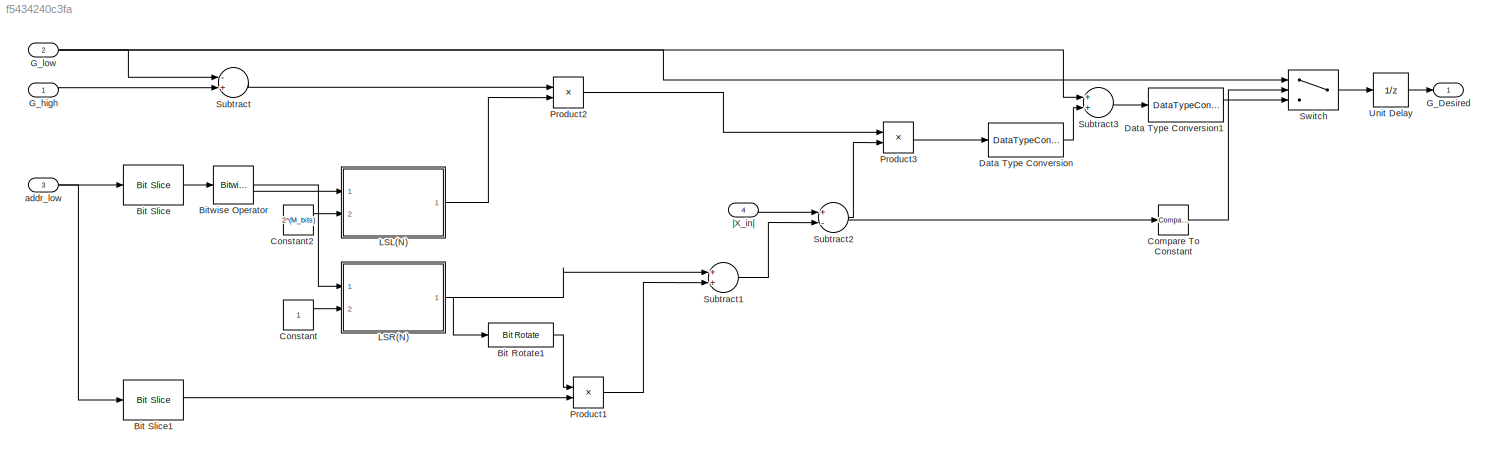
MODEL slx_f5434240c3fa
KIND model
CONFIG AbsTol = auto
CONFIG EnableMultiTasking = off
CONFIG FixedStep = auto
CONFIG InitFcn = clear;\nDIAGNOSTIC = 0;  %% flag to give more information as simulation proceeds such as comments & plots\nCALIB_DIAGNOSTIC =  0; %% flag to give more information about calibration of filterbank due to overlap between filters: Mar 2016\nPRESCRIPT = 1;  %% flag to plot requested versus achieved insertion gains (esp for 125-250 Hz region).\nipfiledigrms = -36; %% input file RMS in dB for 65 dB SPL equiv...<+3607ch>
CONFIG MaxStep = auto
CONFIG MinStep = auto
CONFIG RelTol = 1e-3
CONFIG SampleTimeConstraint = Unconstrained
CONFIG Solver = VariableStepAuto
CONFIG SolverName = VariableStepAuto
CONFIG StartTime = 0.0
CONFIG StopFcn = proc_sig = double(out.proc_sig.data(:));\n%alignedSigs = double(out.alignedSigs.data(:));\n[opwav, stop_ok] = savewavfile(opfiledigrms, ipfiledigrms, proc_sig, Fs, nbits, NStreams);\n\nload('SweepSimOutput.mat')\nX_out_Sweep_Sim(Volume,:) = proc_sig;\nsave('SweepSimOutput.mat', 'X_out_Sweep_Sim');
CONFIG StopTime = 10.0
BLOCK [Reference] Bit Rotate1  REF=hdlsllib/Logic and Bit
Operations/Bit Rotate
  Ports = [1, 1]
  SourceBlock = hdlsllib/Logic and Bit\nOperations/Bit Rotate
  SourceProductBaseCode = SL
  SourceProductName = Simulink
  SourceType = Bit Rotate
BLOCK [Reference] Bit Slice  REF=hdlsllib/Logic and Bit
Operations/Bit Slice
  Ports = [1, 1]
  SourceBlock = hdlsllib/Logic and Bit\nOperations/Bit Slice
  SourceProductBaseCode = SL
  SourceProductName = Simulink
  SourceType = Bit Slice
BLOCK [Reference] Bit Slice1  REF=hdlsllib/Logic and Bit
Operations/Bit Slice
  Ports = [1, 1]
  SourceBlock = hdlsllib/Logic and Bit\nOperations/Bit Slice
  SourceProductBaseCode = SL
  SourceProductName = Simulink
  SourceType = Bit Slice
BLOCK [Reference] Bitwise Operator  REF=simulink/Logic and Bit
Operations/Bitwise
Operator
  Ports = [1, 1]
  SourceBlock = simulink/Logic and Bit\nOperations/Bitwise\nOperator
  SourceProductBaseCode = SL
  SourceProductName = Simulink
  SourceType = Bitwise Operator
BLOCK [Reference] Compare To Constant  REF=simulink/Logic and Bit
Operations/Compare
To Constant
  Ports = [1, 1]
  SourceBlock = simulink/Logic and Bit\nOperations/Compare\nTo Constant
  SourceProductBaseCode = SL
  SourceProductName = Simulink
  SourceType = Compare To Constant
BLOCK [Constant] Constant
  OutDataTypeStr = fixdt(0,W_bits,W_bits-2)
  SampleTime = -1
BLOCK [Constant] Constant2
  OutDataTypeStr = fixdt(0,W_bits,0)
  SampleTime = -1
  Value = 2^(M_bits)
BLOCK [DataTypeConversion] Data Type Conversion
  OutDataTypeStr = fixdt(1,W_bits,F_bits)
  RndMeth = Floor
  SaturateOnIntegerOverflow = off
BLOCK [DataTypeConversion] Data Type Conversion1
  OutDataTypeStr = fixdt(1,W_bits, F_bits)
  RndMeth = Floor
  SaturateOnIntegerOverflow = off
BLOCK [Outport] G_Desired
  IconDisplay = Port number
  OutDataTypeStr = fixdt(1,32,28)
  PortDimensions = 1
  SampleTime = [2.0833333333333333e-05,0]
  SignalType = real
BLOCK [Inport] G_high
  IconDisplay = Port number
  OutDataTypeStr = fixdt(1, 32, 28)
  PortDimensions = 1
  SampleTime = 2.08333333333333e-05
  SignalType = real
BLOCK [Inport] G_low
  IconDisplay = Port number
  OutDataTypeStr = fixdt(1, 32, 28)
  Port = 2
  PortDimensions = 1
  SampleTime = 2.08333333333333e-05
  SignalType = real
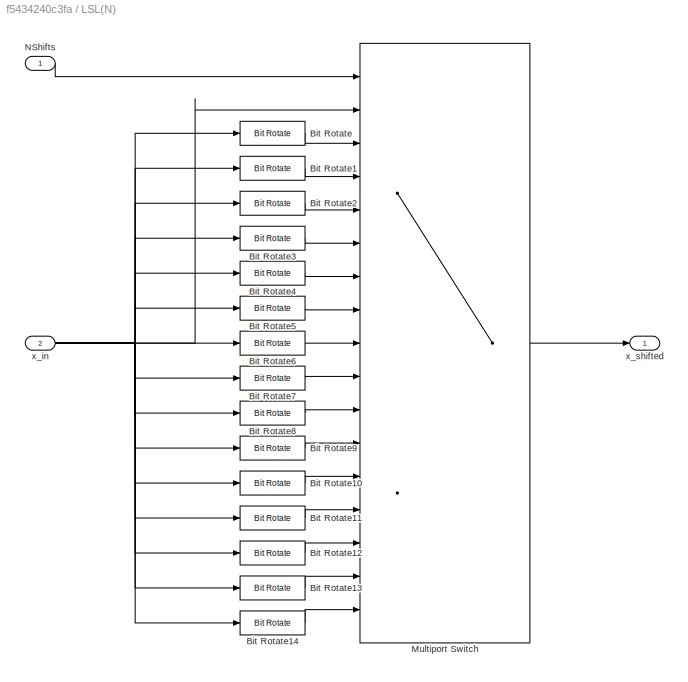
BLOCK [SubSystem] LSL(N)
  Ports = [2, 1]
  RequestExecContextInheritance = off
BLOCK [Reference] LSL(N)/Bit Rotate  REF=hdlsllib/Logic and Bit
Operations/Bit Rotate
  Ports = [1, 1]
  SourceBlock = hdlsllib/Logic and Bit\nOperations/Bit Rotate
  SourceProductBaseCode = SL
  SourceProductName = Simulink
  SourceType = Bit Rotate
BLOCK [Reference] LSL(N)/Bit Rotate1  REF=hdlsllib/Logic and Bit
Operations/Bit Rotate
  Ports = [1, 1]
  SourceBlock = hdlsllib/Logic and Bit\nOperations/Bit Rotate
  SourceProductBaseCode = SL
  SourceProductName = Simulink
  SourceType = Bit Rotate
BLOCK [Reference] LSL(N)/Bit Rotate10  REF=hdlsllib/Logic and Bit
Operations/Bit Rotate
  Ports = [1, 1]
  SourceBlock = hdlsllib/Logic and Bit\nOperations/Bit Rotate
  SourceProductBaseCode = SL
  SourceProductName = Simulink
  SourceType = Bit Rotate
BLOCK [Reference] LSL(N)/Bit Rotate11  REF=hdlsllib/Logic and Bit
Operations/Bit Rotate
  Ports = [1, 1]
  SourceBlock = hdlsllib/Logic and Bit\nOperations/Bit Rotate
  SourceProductBaseCode = SL
  SourceProductName = Simulink
  SourceType = Bit Rotate
BLOCK [Reference] LSL(N)/Bit Rotate12  REF=hdlsllib/Logic and Bit
Operations/Bit Rotate
  Ports = [1, 1]
  SourceBlock = hdlsllib/Logic and Bit\nOperations/Bit Rotate
  SourceProductBaseCode = SL
  SourceProductName = Simulink
  SourceType = Bit Rotate
BLOCK [Reference] LSL(N)/Bit Rotate13  REF=hdlsllib/Logic and Bit
Operations/Bit Rotate
  Ports = [1, 1]
  SourceBlock = hdlsllib/Logic and Bit\nOperations/Bit Rotate
  SourceProductBaseCode = SL
  SourceProductName = Simulink
  SourceType = Bit Rotate
BLOCK [Reference] LSL(N)/Bit Rotate14  REF=hdlsllib/Logic and Bit
Operations/Bit Rotate
  Ports = [1, 1]
  SourceBlock = hdlsllib/Logic and Bit\nOperations/Bit Rotate
  SourceProductBaseCode = SL
  SourceProductName = Simulink
  SourceType = Bit Rotate
BLOCK [Reference] LSL(N)/Bit Rotate2  REF=hdlsllib/Logic and Bit
Operations/Bit Rotate
  Ports = [1, 1]
  SourceBlock = hdlsllib/Logic and Bit\nOperations/Bit Rotate
  SourceProductBaseCode = SL
  SourceProductName = Simulink
  SourceType = Bit Rotate
BLOCK [Reference] LSL(N)/Bit Rotate3  REF=hdlsllib/Logic and Bit
Operations/Bit Rotate
  Ports = [1, 1]
  SourceBlock = hdlsllib/Logic and Bit\nOperations/Bit Rotate
  SourceProductBaseCode = SL
  SourceProductName = Simulink
  SourceType = Bit Rotate
BLOCK [Reference] LSL(N)/Bit Rotate4  REF=hdlsllib/Logic and Bit
Operations/Bit Rotate
  Ports = [1, 1]
  SourceBlock = hdlsllib/Logic and Bit\nOperations/Bit Rotate
  SourceProductBaseCode = SL
  SourceProductName = Simulink
  SourceType = Bit Rotate
BLOCK [Reference] LSL(N)/Bit Rotate5  REF=hdlsllib/Logic and Bit
Operations/Bit Rotate
  Ports = [1, 1]
  SourceBlock = hdlsllib/Logic and Bit\nOperations/Bit Rotate
  SourceProductBaseCode = SL
  SourceProductName = Simulink
  SourceType = Bit Rotate
BLOCK [Reference] LSL(N)/Bit Rotate6  REF=hdlsllib/Logic and Bit
Operations/Bit Rotate
  Ports = [1, 1]
  SourceBlock = hdlsllib/Logic and Bit\nOperations/Bit Rotate
  SourceProductBaseCode = SL
  SourceProductName = Simulink
  SourceType = Bit Rotate
BLOCK [Reference] LSL(N)/Bit Rotate7  REF=hdlsllib/Logic and Bit
Operations/Bit Rotate
  Ports = [1, 1]
  SourceBlock = hdlsllib/Logic and Bit\nOperations/Bit Rotate
  SourceProductBaseCode = SL
  SourceProductName = Simulink
  SourceType = Bit Rotate
BLOCK [Reference] LSL(N)/Bit Rotate8  REF=hdlsllib/Logic and Bit
Operations/Bit Rotate
  Ports = [1, 1]
  SourceBlock = hdlsllib/Logic and Bit\nOperations/Bit Rotate
  SourceProductBaseCode = SL
  SourceProductName = Simulink
  SourceType = Bit Rotate
BLOCK [Reference] LSL(N)/Bit Rotate9  REF=hdlsllib/Logic and Bit
Operations/Bit Rotate
  Ports = [1, 1]
  SourceBlock = hdlsllib/Logic and Bit\nOperations/Bit Rotate
  SourceProductBaseCode = SL
  SourceProductName = Simulink
  SourceType = Bit Rotate
BLOCK [MultiPortSwitch] LSL(N)/Multiport Switch
  DataPortOrder = Zero-based contiguous
  DiagnosticForDefault = Warning
  InputSameDT = off
  Inputs = 16
  Ports = [17, 1]
  SaturateOnIntegerOverflow = off
  zeroidx = on
BLOCK [Inport] LSL(N)/NShifts
  IconDisplay = Port number
  OutDataTypeStr = fixdt(0, 4, 0)
  PortDimensions = 1
  SampleTime = 2.08333333333333e-05
BLOCK [Inport] LSL(N)/x_in
  IconDisplay = Port number
  OutDataTypeStr = uint32
  Port = 2
  PortDimensions = 1
  SampleTime = 2.08333333333333e-05
BLOCK [Outport] LSL(N)/x_shifted
  IconDisplay = Port number
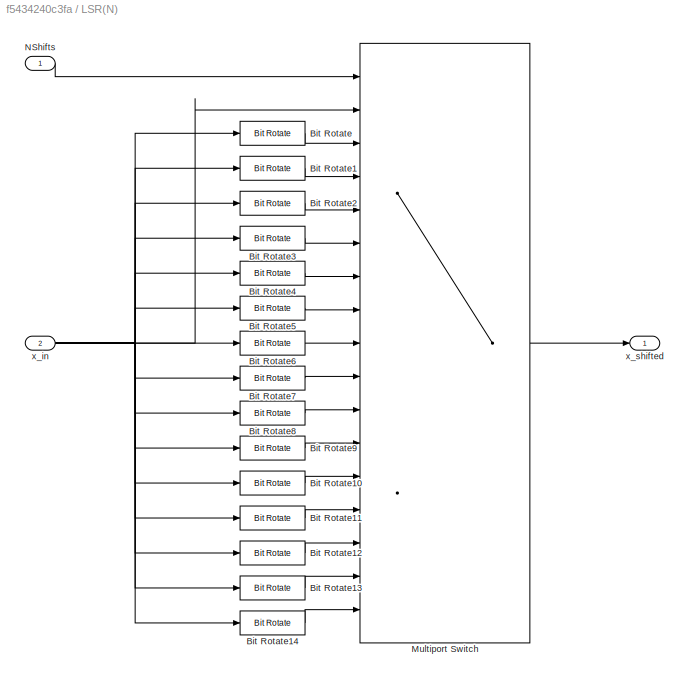
BLOCK [SubSystem] LSR(N)
  Ports = [2, 1]
  RequestExecContextInheritance = off
BLOCK [Reference] LSR(N)/Bit Rotate  REF=hdlsllib/Logic and Bit
Operations/Bit Rotate
  Ports = [1, 1]
  SourceBlock = hdlsllib/Logic and Bit\nOperations/Bit Rotate
  SourceProductBaseCode = SL
  SourceProductName = Simulink
  SourceType = Bit Rotate
BLOCK [Reference] LSR(N)/Bit Rotate1  REF=hdlsllib/Logic and Bit
Operations/Bit Rotate
  Ports = [1, 1]
  SourceBlock = hdlsllib/Logic and Bit\nOperations/Bit Rotate
  SourceProductBaseCode = SL
  SourceProductName = Simulink
  SourceType = Bit Rotate
BLOCK [Reference] LSR(N)/Bit Rotate10  REF=hdlsllib/Logic and Bit
Operations/Bit Rotate
  Ports = [1, 1]
  SourceBlock = hdlsllib/Logic and Bit\nOperations/Bit Rotate
  SourceProductBaseCode = SL
  SourceProductName = Simulink
  SourceType = Bit Rotate
BLOCK [Reference] LSR(N)/Bit Rotate11  REF=hdlsllib/Logic and Bit
Operations/Bit Rotate
  Ports = [1, 1]
  SourceBlock = hdlsllib/Logic and Bit\nOperations/Bit Rotate
  SourceProductBaseCode = SL
  SourceProductName = Simulink
  SourceType = Bit Rotate
BLOCK [Reference] LSR(N)/Bit Rotate12  REF=hdlsllib/Logic and Bit
Operations/Bit Rotate
  Ports = [1, 1]
  SourceBlock = hdlsllib/Logic and Bit\nOperations/Bit Rotate
  SourceProductBaseCode = SL
  SourceProductName = Simulink
  SourceType = Bit Rotate
BLOCK [Reference] LSR(N)/Bit Rotate13  REF=hdlsllib/Logic and Bit
Operations/Bit Rotate
  Ports = [1, 1]
  SourceBlock = hdlsllib/Logic and Bit\nOperations/Bit Rotate
  SourceProductBaseCode = SL
  SourceProductName = Simulink
  SourceType = Bit Rotate
BLOCK [Reference] LSR(N)/Bit Rotate14  REF=hdlsllib/Logic and Bit
Operations/Bit Rotate
  Ports = [1, 1]
  SourceBlock = hdlsllib/Logic and Bit\nOperations/Bit Rotate
  SourceProductBaseCode = SL
  SourceProductName = Simulink
  SourceType = Bit Rotate
BLOCK [Reference] LSR(N)/Bit Rotate2  REF=hdlsllib/Logic and Bit
Operations/Bit Rotate
  Ports = [1, 1]
  SourceBlock = hdlsllib/Logic and Bit\nOperations/Bit Rotate
  SourceProductBaseCode = SL
  SourceProductName = Simulink
  SourceType = Bit Rotate
BLOCK [Reference] LSR(N)/Bit Rotate3  REF=hdlsllib/Logic and Bit
Operations/Bit Rotate
  Ports = [1, 1]
  SourceBlock = hdlsllib/Logic and Bit\nOperations/Bit Rotate
  SourceProductBaseCode = SL
  SourceProductName = Simulink
  SourceType = Bit Rotate
BLOCK [Reference] LSR(N)/Bit Rotate4  REF=hdlsllib/Logic and Bit
Operations/Bit Rotate
  Ports = [1, 1]
  SourceBlock = hdlsllib/Logic and Bit\nOperations/Bit Rotate
  SourceProductBaseCode = SL
  SourceProductName = Simulink
  SourceType = Bit Rotate
BLOCK [Reference] LSR(N)/Bit Rotate5  REF=hdlsllib/Logic and Bit
Operations/Bit Rotate
  Ports = [1, 1]
  SourceBlock = hdlsllib/Logic and Bit\nOperations/Bit Rotate
  SourceProductBaseCode = SL
  SourceProductName = Simulink
  SourceType = Bit Rotate
BLOCK [Reference] LSR(N)/Bit Rotate6  REF=hdlsllib/Logic and Bit
Operations/Bit Rotate
  Ports = [1, 1]
  SourceBlock = hdlsllib/Logic and Bit\nOperations/Bit Rotate
  SourceProductBaseCode = SL
  SourceProductName = Simulink
  SourceType = Bit Rotate
BLOCK [Reference] LSR(N)/Bit Rotate7  REF=hdlsllib/Logic and Bit
Operations/Bit Rotate
  Ports = [1, 1]
  SourceBlock = hdlsllib/Logic and Bit\nOperations/Bit Rotate
  SourceProductBaseCode = SL
  SourceProductName = Simulink
  SourceType = Bit Rotate
BLOCK [Reference] LSR(N)/Bit Rotate8  REF=hdlsllib/Logic and Bit
Operations/Bit Rotate
  Ports = [1, 1]
  SourceBlock = hdlsllib/Logic and Bit\nOperations/Bit Rotate
  SourceProductBaseCode = SL
  SourceProductName = Simulink
  SourceType = Bit Rotate
BLOCK [Reference] LSR(N)/Bit Rotate9  REF=hdlsllib/Logic and Bit
Operations/Bit Rotate
  Ports = [1, 1]
  SourceBlock = hdlsllib/Logic and Bit\nOperations/Bit Rotate
  SourceProductBaseCode = SL
  SourceProductName = Simulink
  SourceType = Bit Rotate
BLOCK [MultiPortSwitch] LSR(N)/Multiport Switch
  DataPortOrder = Zero-based contiguous
  DiagnosticForDefault = Warning
  InputSameDT = off
  Inputs = 16
  Ports = [17, 1]
  SaturateOnIntegerOverflow = off
  zeroidx = on
BLOCK [Inport] LSR(N)/NShifts
  IconDisplay = Port number
  OutDataTypeStr = fixdt(0, 4, 0)
  PortDimensions = 1
  SampleTime = 2.08333333333333e-05
BLOCK [Inport] LSR(N)/x_in
  IconDisplay = Port number
  OutDataTypeStr = fixdt(0, 32, 30)
  Port = 2
  PortDimensions = 1
  SampleTime = 2.08333333333333e-05
BLOCK [Outport] LSR(N)/x_shifted
  IconDisplay = Port number
BLOCK [Product] Product1
  InputSameDT = off
  OutDataTypeStr = Inherit: Inherit via internal rule
  Ports = [2, 1]
  RndMeth = Floor
  SaturateOnIntegerOverflow = off
BLOCK [Product] Product2
  InputSameDT = off
  OutDataTypeStr = Inherit: Inherit via internal rule
  Ports = [2, 1]
  RndMeth = Floor
  SaturateOnIntegerOverflow = off
BLOCK [Product] Product3
  InputSameDT = off
  OutDataTypeStr = Inherit: Inherit via internal rule
  Ports = [2, 1]
  RndMeth = Floor
  SaturateOnIntegerOverflow = off
BLOCK [Sum] Subtract
  InputSameDT = off
  Inputs = -+
  OutDataTypeStr = Inherit: Inherit via internal rule
  Ports = [2, 1]
  SaturateOnIntegerOverflow = off
BLOCK [Sum] Subtract1
  InputSameDT = off
  OutDataTypeStr = fixdt(1,W_bits, F_bits)
  Ports = [2, 1]
  SaturateOnIntegerOverflow = off
BLOCK [Sum] Subtract2
  InputSameDT = off
  Inputs = +-
  Ports = [2, 1]
  SaturateOnIntegerOverflow = off
BLOCK [Sum] Subtract3
  InputSameDT = off
  OutDataTypeStr = Inherit: Inherit via internal rule
  Ports = [2, 1]
  SaturateOnIntegerOverflow = off
BLOCK [Switch] Switch
  Criteria = u2 > Threshold
  InputSameDT = off
  SaturateOnIntegerOverflow = off
BLOCK [UnitDelay] Unit Delay
  HasFrameUpgradeWarning = on
  InitialCondition = 1
  SampleTime = -1
BLOCK [Inport] addr_low
  IconDisplay = Port number
  OutDataTypeStr = fixdt(0, 9, 0)
  Port = 3
  PortDimensions = 1
  SampleTime = 2.08333333333333e-05
  SignalType = real
BLOCK [Inport] |X_in|
  IconDisplay = Port number
  OutDataTypeStr = fixdt(1, 32, 28)
  Port = 4
  PortDimensions = 1
  SampleTime = 2.08333333333333e-05
  SignalType = real
LINE Bit Rotate1:1 -> Product1:1
LINE Bit Slice1:1 -> Product1:2
LINE Bit Slice:1 -> Bitwise Operator:1
NET Bitwise Operator:1 -> LSL(N):1, LSR(N):1
LINE Compare To Constant:1 -> Switch:2
LINE Constant2:1 -> LSL(N):2
LINE Constant:1 -> LSR(N):2
LINE Data Type Conversion1:1 -> Switch:3
LINE Data Type Conversion:1 -> Subtract3:2
LINE G_high:1 -> Subtract:2
NET G_low:1 -> Subtract3:1, Subtract:1, Switch:1
LINE LSL(N)/Bit Rotate10:1 -> LSL(N)/Multiport Switch:13
LINE LSL(N)/Bit Rotate11:1 -> LSL(N)/Multiport Switch:14
LINE LSL(N)/Bit Rotate12:1 -> LSL(N)/Multiport Switch:15
LINE LSL(N)/Bit Rotate13:1 -> LSL(N)/Multiport Switch:16
LINE LSL(N)/Bit Rotate14:1 -> LSL(N)/Multiport Switch:17
LINE LSL(N)/Bit Rotate1:1 -> LSL(N)/Multiport Switch:4
LINE LSL(N)/Bit Rotate2:1 -> LSL(N)/Multiport Switch:5
LINE LSL(N)/Bit Rotate3:1 -> LSL(N)/Multiport Switch:6
LINE LSL(N)/Bit Rotate4:1 -> LSL(N)/Multiport Switch:7
LINE LSL(N)/Bit Rotate5:1 -> LSL(N)/Multiport Switch:8
LINE LSL(N)/Bit Rotate6:1 -> LSL(N)/Multiport Switch:9
LINE LSL(N)/Bit Rotate7:1 -> LSL(N)/Multiport Switch:10
LINE LSL(N)/Bit Rotate8:1 -> LSL(N)/Multiport Switch:11
LINE LSL(N)/Bit Rotate9:1 -> LSL(N)/Multiport Switch:12
LINE LSL(N)/Bit Rotate:1 -> LSL(N)/Multiport Switch:3
LINE LSL(N)/Multiport Switch:1 -> LSL(N)/x_shifted:1
LINE LSL(N)/NShifts:1 -> LSL(N)/Multiport Switch:1
NET LSL(N)/x_in:1 -> LSL(N)/Bit Rotate10:1, LSL(N)/Bit Rotate11:1, LSL(N)/Bit Rotate12:1, LSL(N)/Bit Rotate13:1, LSL(N)/Bit Rotate14:1, LSL(N)/Bit Rotate1:1, LSL(N)/Bit Rotate2:1, LSL(N)/Bit Rotate3:1, LSL(N)/Bit Rotate4:1, LSL(N)/Bit Rotate5:1, LSL(N)/Bit Rotate6:1, LSL(N)/Bit Rotate7:1, LSL(N)/Bit Rotate8:1, LSL(N)/Bit Rotate9:1, LSL(N)/Bit Rotate:1, LSL(N)/Multiport Switch:2
LINE LSL(N):1 -> Product2:2
LINE LSR(N)/Bit Rotate10:1 -> LSR(N)/Multiport Switch:13
LINE LSR(N)/Bit Rotate11:1 -> LSR(N)/Multiport Switch:14
LINE LSR(N)/Bit Rotate12:1 -> LSR(N)/Multiport Switch:15
LINE LSR(N)/Bit Rotate13:1 -> LSR(N)/Multiport Switch:16
LINE LSR(N)/Bit Rotate14:1 -> LSR(N)/Multiport Switch:17
LINE LSR(N)/Bit Rotate1:1 -> LSR(N)/Multiport Switch:4
LINE LSR(N)/Bit Rotate2:1 -> LSR(N)/Multiport Switch:5
LINE LSR(N)/Bit Rotate3:1 -> LSR(N)/Multiport Switch:6
LINE LSR(N)/Bit Rotate4:1 -> LSR(N)/Multiport Switch:7
LINE LSR(N)/Bit Rotate5:1 -> LSR(N)/Multiport Switch:8
LINE LSR(N)/Bit Rotate6:1 -> LSR(N)/Multiport Switch:9
LINE LSR(N)/Bit Rotate7:1 -> LSR(N)/Multiport Switch:10
LINE LSR(N)/Bit Rotate8:1 -> LSR(N)/Multiport Switch:11
LINE LSR(N)/Bit Rotate9:1 -> LSR(N)/Multiport Switch:12
LINE LSR(N)/Bit Rotate:1 -> LSR(N)/Multiport Switch:3
LINE LSR(N)/Multiport Switch:1 -> LSR(N)/x_shifted:1
LINE LSR(N)/NShifts:1 -> LSR(N)/Multiport Switch:1
NET LSR(N)/x_in:1 -> LSR(N)/Bit Rotate10:1, LSR(N)/Bit Rotate11:1, LSR(N)/Bit Rotate12:1, LSR(N)/Bit Rotate13:1, LSR(N)/Bit Rotate14:1, LSR(N)/Bit Rotate1:1, LSR(N)/Bit Rotate2:1, LSR(N)/Bit Rotate3:1, LSR(N)/Bit Rotate4:1, LSR(N)/Bit Rotate5:1, LSR(N)/Bit Rotate6:1, LSR(N)/Bit Rotate7:1, LSR(N)/Bit Rotate8:1, LSR(N)/Bit Rotate9:1, LSR(N)/Bit Rotate:1, LSR(N)/Multiport Switch:2
NET LSR(N):1 -> Bit Rotate1:1, Subtract1:1
LINE Product1:1 -> Subtract1:2
LINE Product2:1 -> Product3:1
LINE Product3:1 -> Data Type Conversion:1
LINE Subtract1:1 -> Subtract2:2
NET Subtract2:1 -> Compare To Constant:1, Product3:2
LINE Subtract3:1 -> Data Type Conversion1:1
LINE Subtract:1 -> Product2:1
LINE Switch:1 -> Unit Delay:1
LINE Unit Delay:1 -> G_Desired:1
NET addr_low:1 -> Bit Slice1:1, Bit Slice:1
LINE |X_in|:1 -> Subtract2:1
note: NET lines group one-source signal fan-out (src -> all destinations, sorted); 1:1 wires keep LINE
